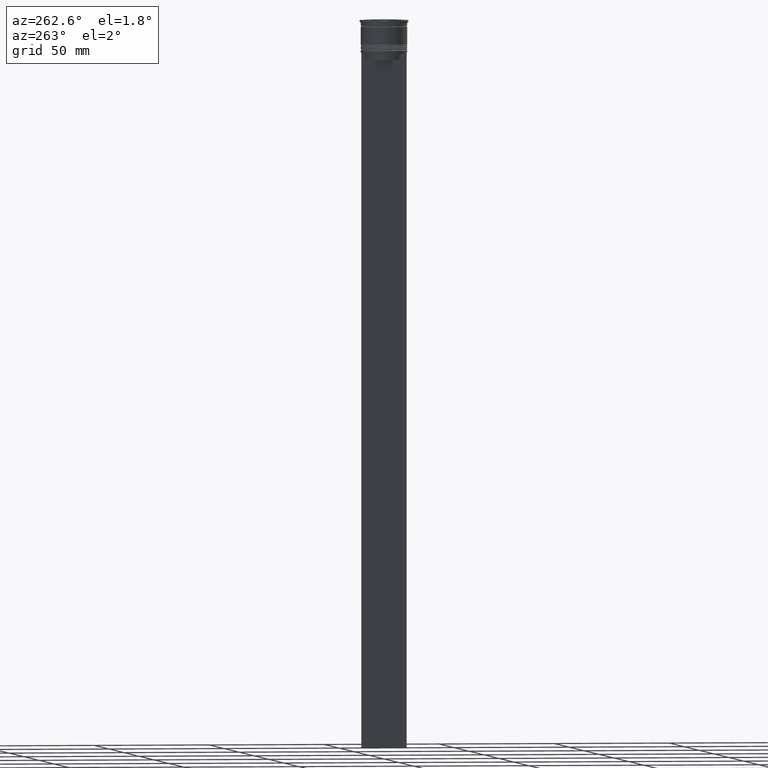
[diagram: clean part render]
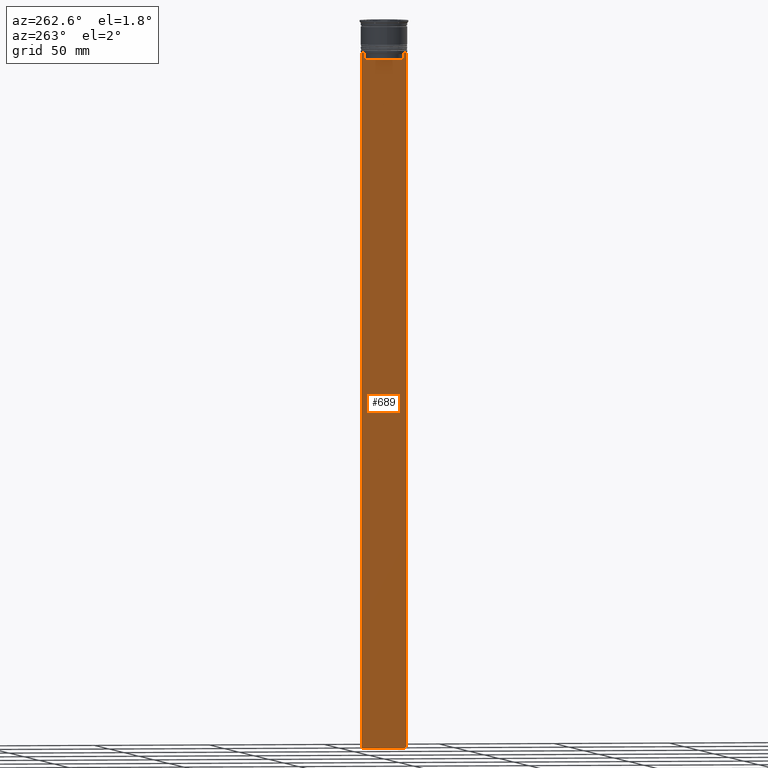
[diagram: same view with one face highlighted and labeled with its STEP entity id]
A machine part, auxiliary view. The second image highlights one B-rep face of the part: STEP entity #689.
In plain terms, the highlighted planar face has unit normal (-1, 0, 0).
Its self-contained STEP definition (entity closure, byte-faithful):
#16 = DIRECTION ( 'NONE',  ( -0.000000000000000000, -0.000000000000000000, 1.000000000000000000 ) ) ;
#33 = VECTOR ( 'NONE', #1073, 1000.000000000000000 ) ;
#68 = CARTESIAN_POINT ( 'NONE',  ( -0.5000000000000001110, 8.885943956609230199, -14.00000000000000178 ) ) ;
#69 = VERTEX_POINT ( 'NONE', #2015 ) ;
#114 = CARTESIAN_POINT ( 'NONE',  ( -0.5000000000000001110, -9.749999999999998224, -14.00000000000000178 ) ) ;
#137 = VERTEX_POINT ( 'NONE', #1587 ) ;
#184 = EDGE_CURVE ( 'NONE', #2210, #69, #1641, .T. ) ;
#239 = ORIENTED_EDGE ( 'NONE', *, *, #282, .F. ) ;
#258 = ORIENTED_EDGE ( 'NONE', *, *, #2342, .F. ) ;
#282 = EDGE_CURVE ( 'NONE', #813, #1632, #2078, .T. ) ;
#284 = VERTEX_POINT ( 'NONE', #624 ) ;
#319 = ORIENTED_EDGE ( 'NONE', *, *, #634, .F. ) ;
#321 = LINE ( 'NONE', #692, #379 ) ;
#353 = EDGE_CURVE ( 'NONE', #1632, #1552, #2089, .T. ) ;
#379 = VECTOR ( 'NONE', #1520, 1000.000000000000000 ) ;
#388 = ORIENTED_EDGE ( 'NONE', *, *, #2118, .T. ) ;
#402 = VECTOR ( 'NONE', #1024, 1000.000000000000000 ) ;
#429 = FACE_OUTER_BOUND ( 'NONE', #2517, .T. ) ;
#460 = AXIS2_PLACEMENT_3D ( 'NONE', #2025, #2401, #2428 ) ;
#483 = CARTESIAN_POINT ( 'NONE',  ( -0.5000000000000001110, -8.385105843100616241, -14.50000000000000000 ) ) ;
#573 = VERTEX_POINT ( 'NONE', #950 ) ;
#624 = CARTESIAN_POINT ( 'NONE',  ( -0.5000000000000001110, -8.385105843100616241, -14.50000000000000000 ) ) ;
#634 = EDGE_CURVE ( 'NONE', #1558, #284, #1011, .T. ) ;
#639 = CARTESIAN_POINT ( 'NONE',  ( -0.5000000000000001110, -9.749999999999998224, 5.525624189766635830 ) ) ;
#655 = CARTESIAN_POINT ( 'NONE',  ( -0.5000000000000001110, 8.385105843100616241, -14.50000000000000000 ) ) ;
#662 = DIRECTION ( 'NONE',  ( 0.000000000000000000, -1.000000000000000000, 0.000000000000000000 ) ) ;
#689 = ADVANCED_FACE ( 'NONE', ( #429 ), #2413, .T. ) ;
#692 = CARTESIAN_POINT ( 'NONE',  ( -0.5000000000000001110, 9.750000000000001776, 5.525624189766635830 ) ) ;
#734 = VECTOR ( 'NONE', #662, 1000.000000000000000 ) ;
#813 = VERTEX_POINT ( 'NONE', #1858 ) ;
#816 = CARTESIAN_POINT ( 'NONE',  ( -0.5000000000000001110, -9.749999999999998224, -14.00000000000000178 ) ) ;
#888 = CARTESIAN_POINT ( 'NONE',  ( -0.5000000000000001110, 8.385105843100616241, 0.000000000000000000 ) ) ;
#897 = LINE ( 'NONE', #888, #1080 ) ;
#949 = VECTOR ( 'NONE', #16, 1000.000000000000000 ) ;
#950 = CARTESIAN_POINT ( 'NONE',  ( -0.5000000000000001110, -8.885943956609230199, -14.00000000000000178 ) ) ;
#1008 = ORIENTED_EDGE ( 'NONE', *, *, #1250, .F. ) ;
#1011 = LINE ( 'NONE', #1410, #949 ) ;
#1024 = DIRECTION ( 'NONE',  ( 0.000000000000000000, -1.000000000000000000, 0.000000000000000000 ) ) ;
#1037 = DIRECTION ( 'NONE',  ( 0.000000000000000000, 0.000000000000000000, -1.000000000000000000 ) ) ;
#1073 = DIRECTION ( 'NONE',  ( 0.000000000000000000, 1.000000000000000000, 0.000000000000000000 ) ) ;
#1080 = VECTOR ( 'NONE', #1907, 1000.000000000000000 ) ;
#1126 = B_SPLINE_CURVE_WITH_KNOTS ( 'NONE', 3,
 ( #483, #1710, #2461, #2483 ),
 .UNSPECIFIED., .F., .F.,
 ( 4, 4 ),
 ( 0.03898465126933130243, 0.03969388910599658260 ),
 .UNSPECIFIED. ) ;
#1150 = LINE ( 'NONE', #1823, #402 ) ;
#1206 = VECTOR ( 'NONE', #1320, 1000.000000000000000 ) ;
#1221 = ORIENTED_EDGE ( 'NONE', *, *, #1492, .F. ) ;
#1222 = ORIENTED_EDGE ( 'NONE', *, *, #2325, .F. ) ;
#1250 = EDGE_CURVE ( 'NONE', #1840, #1558, #1150, .T. ) ;
#1275 = CARTESIAN_POINT ( 'NONE',  ( -0.5000000000000001110, 8.719005771582351016, -14.16667453442324742 ) ) ;
#1320 = DIRECTION ( 'NONE',  ( 0.000000000000000000, -1.000000000000000000, 0.000000000000000000 ) ) ;
#1340 = CARTESIAN_POINT ( 'NONE',  ( -0.5000000000000001110, 9.749999999999998224, -14.00000000000000178 ) ) ;
#1410 = CARTESIAN_POINT ( 'NONE',  ( -0.5000000000000001110, -8.385105843100616241, 0.000000000000000000 ) ) ;
#1492 = EDGE_CURVE ( 'NONE', #69, #137, #2452, .T. ) ;
#1520 = DIRECTION ( 'NONE',  ( 0.000000000000000000, 0.000000000000000000, -1.000000000000000000 ) ) ;
#1552 = VERTEX_POINT ( 'NONE', #2035 ) ;
#1558 = VERTEX_POINT ( 'NONE', #2462 ) ;
#1561 = ORIENTED_EDGE ( 'NONE', *, *, #2028, .F. ) ;
#1587 = CARTESIAN_POINT ( 'NONE',  ( -0.5000000000000001110, 8.385105843100616241, -14.50000000000000000 ) ) ;
#1632 = VERTEX_POINT ( 'NONE', #1924 ) ;
#1641 = LINE ( 'NONE', #816, #734 ) ;
#1708 = LINE ( 'NONE', #114, #1206 ) ;
#1710 = CARTESIAN_POINT ( 'NONE',  ( -0.5000000000000001110, -8.552060194457773434, -14.33334167772667023 ) ) ;
#1775 = CARTESIAN_POINT ( 'NONE',  ( -0.5000000000000001110, 8.385105843100616241, -17.00000000000000000 ) ) ;
#1823 = CARTESIAN_POINT ( 'NONE',  ( -0.5000000000000001110, 8.400000000000003908, -17.00000000000000000 ) ) ;
#1840 = VERTEX_POINT ( 'NONE', #1775 ) ;
#1849 = CARTESIAN_POINT ( 'NONE',  ( -0.5000000000000001110, -9.749999999999998224, -314.0000000000000000 ) ) ;
#1858 = CARTESIAN_POINT ( 'NONE',  ( -0.5000000000000001110, -9.749999999999998224, -14.00000000000000178 ) ) ;
#1867 = VECTOR ( 'NONE', #1037, 1000.000000000000000 ) ;
#1907 = DIRECTION ( 'NONE',  ( 0.000000000000000000, 0.000000000000000000, -1.000000000000000000 ) ) ;
#1924 = CARTESIAN_POINT ( 'NONE',  ( -0.5000000000000001110, -9.749999999999998224, -314.0000000000000000 ) ) ;
#2015 = CARTESIAN_POINT ( 'NONE',  ( -0.5000000000000001110, 8.885943956609230199, -14.00000000000000178 ) ) ;
#2025 = CARTESIAN_POINT ( 'NONE',  ( -0.5000000000000001110, -9.749999999999998224, 5.525624189766635830 ) ) ;
#2028 = EDGE_CURVE ( 'NONE', #573, #813, #1708, .T. ) ;
#2035 = CARTESIAN_POINT ( 'NONE',  ( -0.5000000000000001110, 9.750000000000001776, -314.0000000000000000 ) ) ;
#2048 = CARTESIAN_POINT ( 'NONE',  ( -0.5000000000000001110, 8.552060201981381837, -14.33334167021640226 ) ) ;
#2078 = LINE ( 'NONE', #639, #1867 ) ;
#2089 = LINE ( 'NONE', #1849, #33 ) ;
#2118 = EDGE_CURVE ( 'NONE', #2210, #1552, #321, .T. ) ;
#2210 = VERTEX_POINT ( 'NONE', #1340 ) ;
#2279 = ORIENTED_EDGE ( 'NONE', *, *, #184, .F. ) ;
#2325 = EDGE_CURVE ( 'NONE', #137, #1840, #897, .T. ) ;
#2342 = EDGE_CURVE ( 'NONE', #284, #573, #1126, .T. ) ;
#2382 = ORIENTED_EDGE ( 'NONE', *, *, #353, .F. ) ;
#2401 = DIRECTION ( 'NONE',  ( -1.000000000000000000, 0.000000000000000000, 0.000000000000000000 ) ) ;
#2413 = PLANE ( 'NONE',  #460 ) ;
#2428 = DIRECTION ( 'NONE',  ( 0.000000000000000000, 0.000000000000000000, 1.000000000000000000 ) ) ;
#2452 = B_SPLINE_CURVE_WITH_KNOTS ( 'NONE', 3,
 ( #68, #1275, #2048, #655 ),
 .UNSPECIFIED., .F., .F.,
 ( 4, 4 ),
 ( 0.01511546479386908018, 0.01582316445439079997 ),
 .UNSPECIFIED. ) ;
#2461 = CARTESIAN_POINT ( 'NONE',  ( -0.5000000000000001110, -8.719005764482790966, -14.16667454151159689 ) ) ;
#2462 = CARTESIAN_POINT ( 'NONE',  ( -0.5000000000000001110, -8.385105843100616241, -17.00000000000000000 ) ) ;
#2483 = CARTESIAN_POINT ( 'NONE',  ( -0.5000000000000001110, -8.885943956609230199, -14.00000000000000178 ) ) ;
#2517 = EDGE_LOOP ( 'NONE', ( #1221, #2279, #388, #2382, #239, #1561, #258, #319, #1008, #1222 ) ) ;